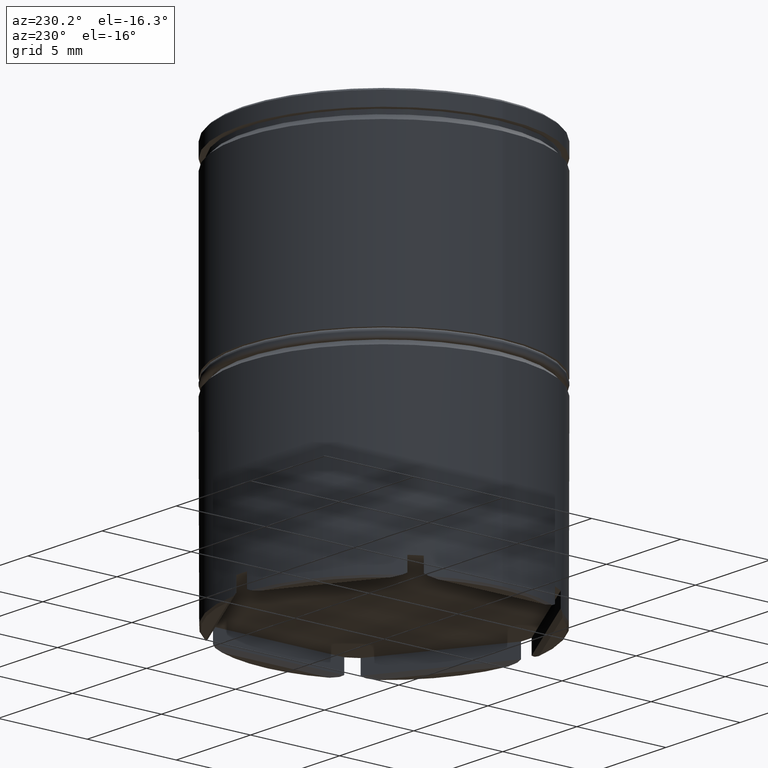
[diagram: clean part render]
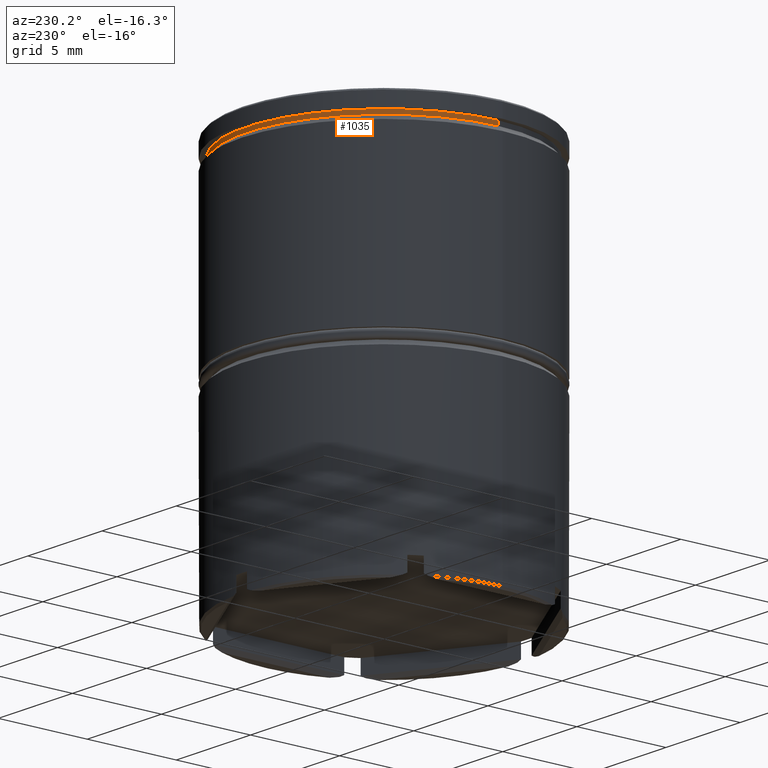
[diagram: same view with one face highlighted and labeled with its STEP entity id]
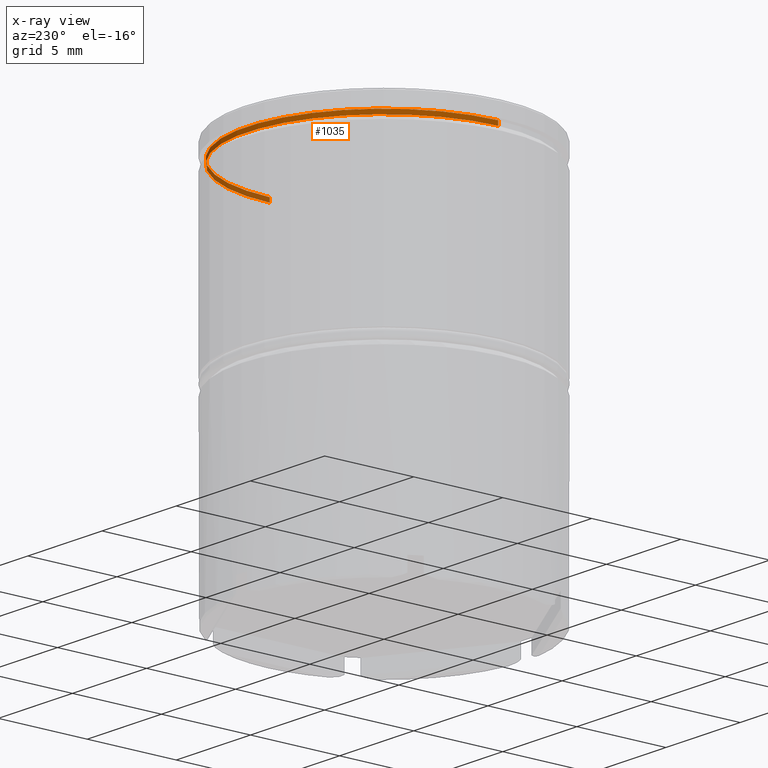
[diagram: x-ray of the same camera — body ghosted, the highlighted face saturated]
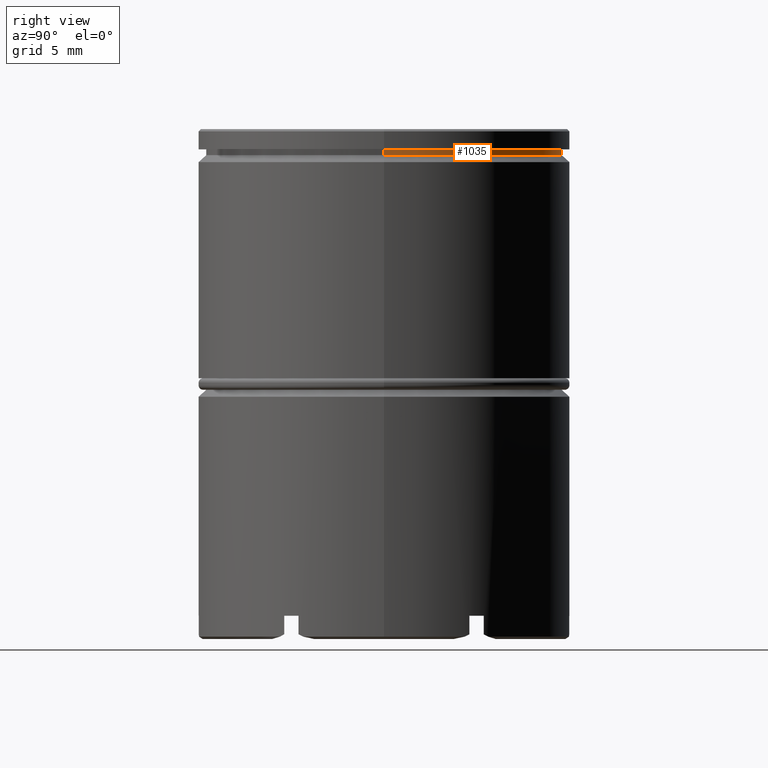
[diagram: same view with one face highlighted and labeled with its STEP entity id]
A machine part, auxiliary view. The second image highlights one B-rep face of the part: STEP entity #1035.
The next image is the same camera in x-ray: the body ghosted, the highlighted face saturated — about 18% of this face is hidden behind the body in this view.
A second angle (right view) of the same face is appended — the face is thin or edge-on in the first view.
In plain terms, the highlighted cylindrical surface (partial cylindrical patch) has radius 7.7 mm, axis along (-0, -0, 1).
Its self-contained STEP definition (entity closure, byte-faithful):
#12 = DIRECTION ( 'NONE',  ( -0.000000000000000000, -0.000000000000000000, 1.000000000000000000 ) ) ;
#143 = DIRECTION ( 'NONE',  ( -0.000000000000000000, -0.000000000000000000, 1.000000000000000000 ) ) ;
#214 = DIRECTION ( 'NONE',  ( 1.000000000000000000, 0.000000000000000000, 0.000000000000000000 ) ) ;
#215 = AXIS2_PLACEMENT_3D ( 'NONE', #729, #1329, #214 ) ;
#247 = VECTOR ( 'NONE', #143, 1000.000000000000000 ) ;
#306 = VERTEX_POINT ( 'NONE', #433 ) ;
#354 = EDGE_LOOP ( 'NONE', ( #1528, #1116, #1117, #550 ) ) ;
#367 = DIRECTION ( 'NONE',  ( -0.000000000000000000, -0.000000000000000000, 1.000000000000000000 ) ) ;
#381 = CIRCLE ( 'NONE', #1307, 7.700000000000000178 ) ;
#433 = CARTESIAN_POINT ( 'NONE',  ( 7.700000000000000178, 0.000000000000000000, -1.125000000000000222 ) ) ;
#441 = CARTESIAN_POINT ( 'NONE',  ( -7.700000000000000178, 9.429780353434619030E-16, -1.125000000000000222 ) ) ;
#454 = CYLINDRICAL_SURFACE ( 'NONE', #215, 7.700000000000000178 ) ;
#455 = EDGE_CURVE ( 'NONE', #306, #1363, #790, .T. ) ;
#464 = DIRECTION ( 'NONE',  ( -0.000000000000000000, -0.000000000000000000, 1.000000000000000000 ) ) ;
#550 = ORIENTED_EDGE ( 'NONE', *, *, #455, .F. ) ;
#576 = EDGE_CURVE ( 'NONE', #847, #964, #664, .T. ) ;
#651 = DIRECTION ( 'NONE',  ( 1.000000000000000000, 0.000000000000000000, 0.000000000000000000 ) ) ;
#664 = LINE ( 'NONE', #1148, #988 ) ;
#729 = CARTESIAN_POINT ( 'NONE',  ( 0.000000000000000000, 0.000000000000000000, 0.000000000000000000 ) ) ;
#740 = CIRCLE ( 'NONE', #1259, 7.700000000000000178 ) ;
#741 = CARTESIAN_POINT ( 'NONE',  ( 0.000000000000000000, 0.000000000000000000, -0.8749999999999998890 ) ) ;
#790 = LINE ( 'NONE', #1492, #247 ) ;
#829 = FACE_OUTER_BOUND ( 'NONE', #354, .T. ) ;
#847 = VERTEX_POINT ( 'NONE', #441 ) ;
#896 = CARTESIAN_POINT ( 'NONE',  ( 0.000000000000000000, 0.000000000000000000, -1.125000000000000222 ) ) ;
#964 = VERTEX_POINT ( 'NONE', #1452 ) ;
#969 = CARTESIAN_POINT ( 'NONE',  ( 7.700000000000000178, 0.000000000000000000, -0.8749999999999998890 ) ) ;
#978 = DIRECTION ( 'NONE',  ( 1.000000000000000000, 0.000000000000000000, 0.000000000000000000 ) ) ;
#988 = VECTOR ( 'NONE', #12, 1000.000000000000000 ) ;
#1035 = ADVANCED_FACE ( 'NONE', ( #829 ), #454, .T. ) ;
#1061 = EDGE_CURVE ( 'NONE', #1363, #964, #740, .T. ) ;
#1116 = ORIENTED_EDGE ( 'NONE', *, *, #576, .T. ) ;
#1117 = ORIENTED_EDGE ( 'NONE', *, *, #1061, .F. ) ;
#1148 = CARTESIAN_POINT ( 'NONE',  ( -7.700000000000000178, 9.429780353434619030E-16, 0.000000000000000000 ) ) ;
#1259 = AXIS2_PLACEMENT_3D ( 'NONE', #741, #464, #978 ) ;
#1307 = AXIS2_PLACEMENT_3D ( 'NONE', #896, #367, #651 ) ;
#1329 = DIRECTION ( 'NONE',  ( -0.000000000000000000, -0.000000000000000000, 1.000000000000000000 ) ) ;
#1363 = VERTEX_POINT ( 'NONE', #969 ) ;
#1452 = CARTESIAN_POINT ( 'NONE',  ( -7.700000000000000178, 9.429780353434619030E-16, -0.8749999999999998890 ) ) ;
#1492 = CARTESIAN_POINT ( 'NONE',  ( 7.700000000000000178, 0.000000000000000000, 0.000000000000000000 ) ) ;
#1528 = ORIENTED_EDGE ( 'NONE', *, *, #1625, .T. ) ;
#1625 = EDGE_CURVE ( 'NONE', #306, #847, #381, .T. ) ;